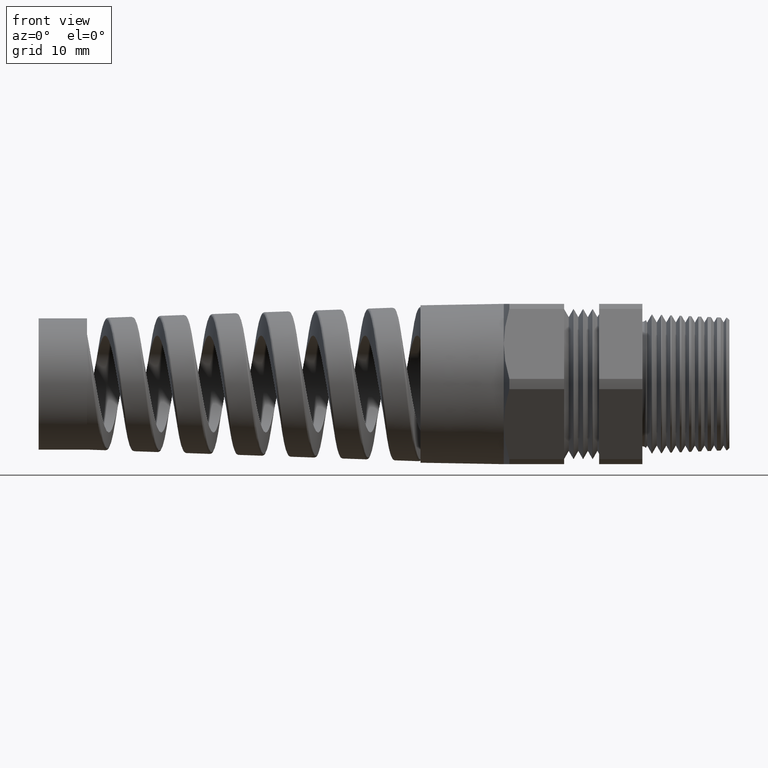
[diagram: clean part render]
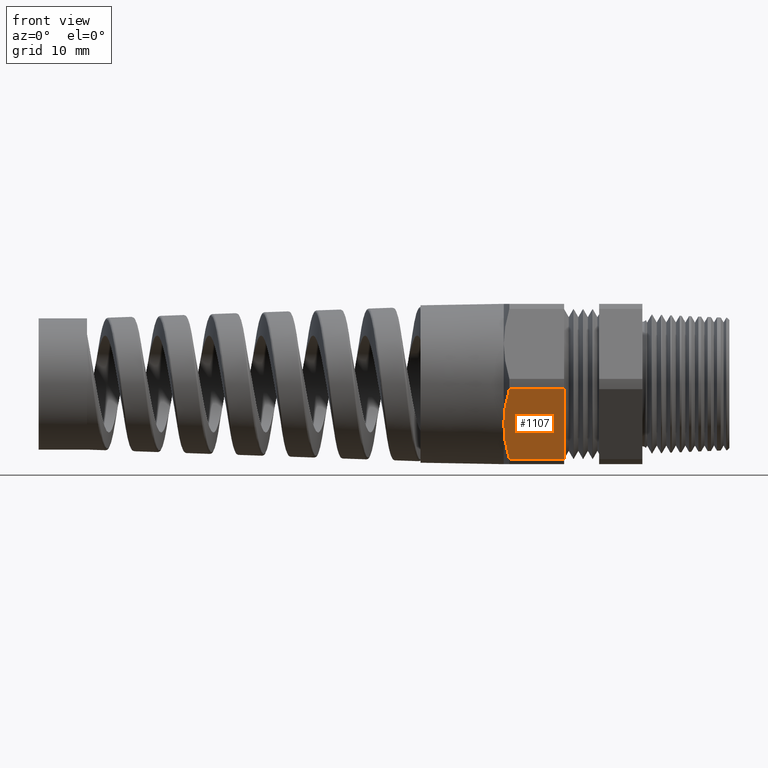
[diagram: same view with one face highlighted and labeled with its STEP entity id]
A machine part, front view. The second image highlights one B-rep face of the part: STEP entity #1107.
In plain terms, the highlighted planar face has unit normal (0, -0.866, -0.5).
Its self-contained STEP definition (entity closure, byte-faithful):
#839 = VERTEX_POINT ( 'NONE', #8132 ) ;
#853 = VERTEX_POINT ( 'NONE', #8170 ) ;
#869 = EDGE_CURVE ( 'NONE', #839, #872, #8199, .T. ) ;
#872 = VERTEX_POINT ( 'NONE', #8195 ) ;
#897 = VERTEX_POINT ( 'NONE', #8222 ) ;
#929 = EDGE_CURVE ( 'NONE', #853, #897, #8272, .T. ) ;
#1074 = ORIENTED_EDGE ( 'NONE', *, *, #1195, .T. ) ;
#1076 = EDGE_CURVE ( 'NONE', #1961, #853, #8464, .T. ) ;
#1077 = ORIENTED_EDGE ( 'NONE', *, *, #1076, .T. ) ;
#1078 = ORIENTED_EDGE ( 'NONE', *, *, #929, .T. ) ;
#1080 = EDGE_CURVE ( 'NONE', #839, #1961, #8463, .T. ) ;
#1081 = ORIENTED_EDGE ( 'NONE', *, *, #1080, .T. ) ;
#1083 = ORIENTED_EDGE ( 'NONE', *, *, #869, .F. ) ;
#1091 = EDGE_LOOP ( 'NONE', ( #1083, #1081, #1077, #1078, #1074 ) ) ;
#1107 = ADVANCED_FACE ( 'NONE', ( #8494 ), #8493, .T. ) ;
#1195 = EDGE_CURVE ( 'NONE', #897, #872, #8658, .T. ) ;
#1961 = VERTEX_POINT ( 'NONE', #9928 ) ;
#8132 = CARTESIAN_POINT ( 'NONE',  ( -0.7799374448177052200, -0.5255614297801198800, -0.02970090112228942300 ) ) ;
#8170 = CARTESIAN_POINT ( 'NONE',  ( -0.7799374448177052200, -0.2885024497772522600, -0.4402990988777105700 ) ) ;
#8195 = CARTESIAN_POINT ( 'NONE',  ( -0.4591666666666665600, -0.5255614297801198800, -0.02970090112228941000 ) ) ;
#8196 = DIRECTION ( 'NONE',  ( 1.000000000000000000, 0.0000000000000000000, 0.0000000000000000000 ) ) ;
#8197 = VECTOR ( 'NONE', #8196, 39.37007874015748100 ) ;
#8198 = CARTESIAN_POINT ( 'NONE',  ( -2.316272878851058700, -0.5255614297801198800, -0.02970090112228941000 ) ) ;
#8199 = LINE ( 'NONE', #8198, #8197 ) ;
#8222 = CARTESIAN_POINT ( 'NONE',  ( -0.4591666666666666700, -0.2885024497772523100, -0.4402990988777106800 ) ) ;
#8268 = DIRECTION ( 'NONE',  ( 1.000000000000000000, 0.0000000000000000000, 0.0000000000000000000 ) ) ;
#8269 = VECTOR ( 'NONE', #8268, 39.37007874015748100 ) ;
#8271 = CARTESIAN_POINT ( 'NONE',  ( -2.316272878851058700, -0.2885024497772522600, -0.4402990988777105700 ) ) ;
#8272 = LINE ( 'NONE', #8271, #8269 ) ;
#8454 = CARTESIAN_POINT ( 'NONE',  ( -0.7799374448177052200, -0.2885024497772522600, -0.4402990988777105700 ) ) ;
#8455 = CARTESIAN_POINT ( 'NONE',  ( -0.7900271810860453000, -0.3079054958720258100, -0.4066920372199621700 ) ) ;
#8456 = CARTESIAN_POINT ( 'NONE',  ( -0.7982229591427910700, -0.3274636671422469500, -0.3728162908768052900 ) ) ;
#8457 = CARTESIAN_POINT ( 'NONE',  ( -0.8066667942091405600, -0.3571162456125950800, -0.3214565183907389100 ) ) ;
#8458 = CARTESIAN_POINT ( 'NONE',  ( -0.8088394445155459000, -0.3670530184620780500, -0.3042455229521632800 ) ) ;
#8459 = CARTESIAN_POINT ( 'NONE',  ( -0.8117608953203717700, -0.3870431849766051700, -0.2696215388972405500 ) ) ;
#8460 = CARTESIAN_POINT ( 'NONE',  ( -0.8124999999999997800, -0.3970726507460992600, -0.2522499946117037200 ) ) ;
#8461 = CARTESIAN_POINT ( 'NONE',  ( -0.8125000000000001100, -0.4070319397786860100, -0.2350000000000000100 ) ) ;
#8463 = B_SPLINE_CURVE_WITH_KNOTS ( 'NONE', 3,
 ( #8510, #8509, #8508, #8507, #8506, #8505 ),
 .UNSPECIFIED., .F., .F.,
 ( 4, 2, 4 ),
 ( 2.361309699382153300E-007, 0.003038075244306925700, 0.006075914357643912700 ),
 .UNSPECIFIED. ) ;
#8464 = B_SPLINE_CURVE_WITH_KNOTS ( 'NONE', 3,
 ( #8461, #8460, #8459, #8458, #8457, #8456, #8455, #8454 ),
 .UNSPECIFIED., .F., .F.,
 ( 4, 2, 2, 4 ),
 ( 0.006075914357643912700, 0.007584561484949386300, 0.009093208612254859900, 0.01211050286686580900 ),
 .UNSPECIFIED. ) ;
#8489 = DIRECTION ( 'NONE',  ( 0.0000000000000000000, 0.5000000000000001100, -0.8660254037844386000 ) ) ;
#8490 = DIRECTION ( 'NONE',  ( 0.0000000000000000000, -0.8660254037844386000, -0.5000000000000001100 ) ) ;
#8491 = CARTESIAN_POINT ( 'NONE',  ( -2.316272878851058700, -0.5255614297801198800, -0.02970090112228941000 ) ) ;
#8492 = AXIS2_PLACEMENT_3D ( 'NONE', #8491, #8490, #8489 ) ;
#8493 = PLANE ( 'NONE',  #8492 ) ;
#8494 = FACE_OUTER_BOUND ( 'NONE', #1091, .T. ) ;
#8505 = CARTESIAN_POINT ( 'NONE',  ( -0.8125000000000001100, -0.4070319397786860100, -0.2350000000000000100 ) ) ;
#8506 = CARTESIAN_POINT ( 'NONE',  ( -0.8124999999999998900, -0.4270861441162215900, -0.2002650991820203200 ) ) ;
#8507 = CARTESIAN_POINT ( 'NONE',  ( -0.8094967120180420700, -0.4469747253204129400, -0.1658170660459015700 ) ) ;
#8508 = CARTESIAN_POINT ( 'NONE',  ( -0.7982716181294380300, -0.4864641007116025700, -0.09741946150920130500 ) ) ;
#8509 = CARTESIAN_POINT ( 'NONE',  ( -0.7900750716247750800, -0.5060662878856625500, -0.06346747738425380400 ) ) ;
#8510 = CARTESIAN_POINT ( 'NONE',  ( -0.7799374448177052200, -0.5255614297801198800, -0.02970090112228942300 ) ) ;
#8655 = DIRECTION ( 'NONE',  ( 0.0000000000000000000, -0.5000000000000001100, 0.8660254037844386000 ) ) ;
#8656 = VECTOR ( 'NONE', #8655, 39.37007874015748100 ) ;
#8657 = CARTESIAN_POINT ( 'NONE',  ( -0.4591666666666666700, -0.2970569397786861400, -0.4254822875623873200 ) ) ;
#8658 = LINE ( 'NONE', #8657, #8656 ) ;
#9928 = CARTESIAN_POINT ( 'NONE',  ( -0.8125000000000001100, -0.4070319397786860100, -0.2350000000000000100 ) ) ;